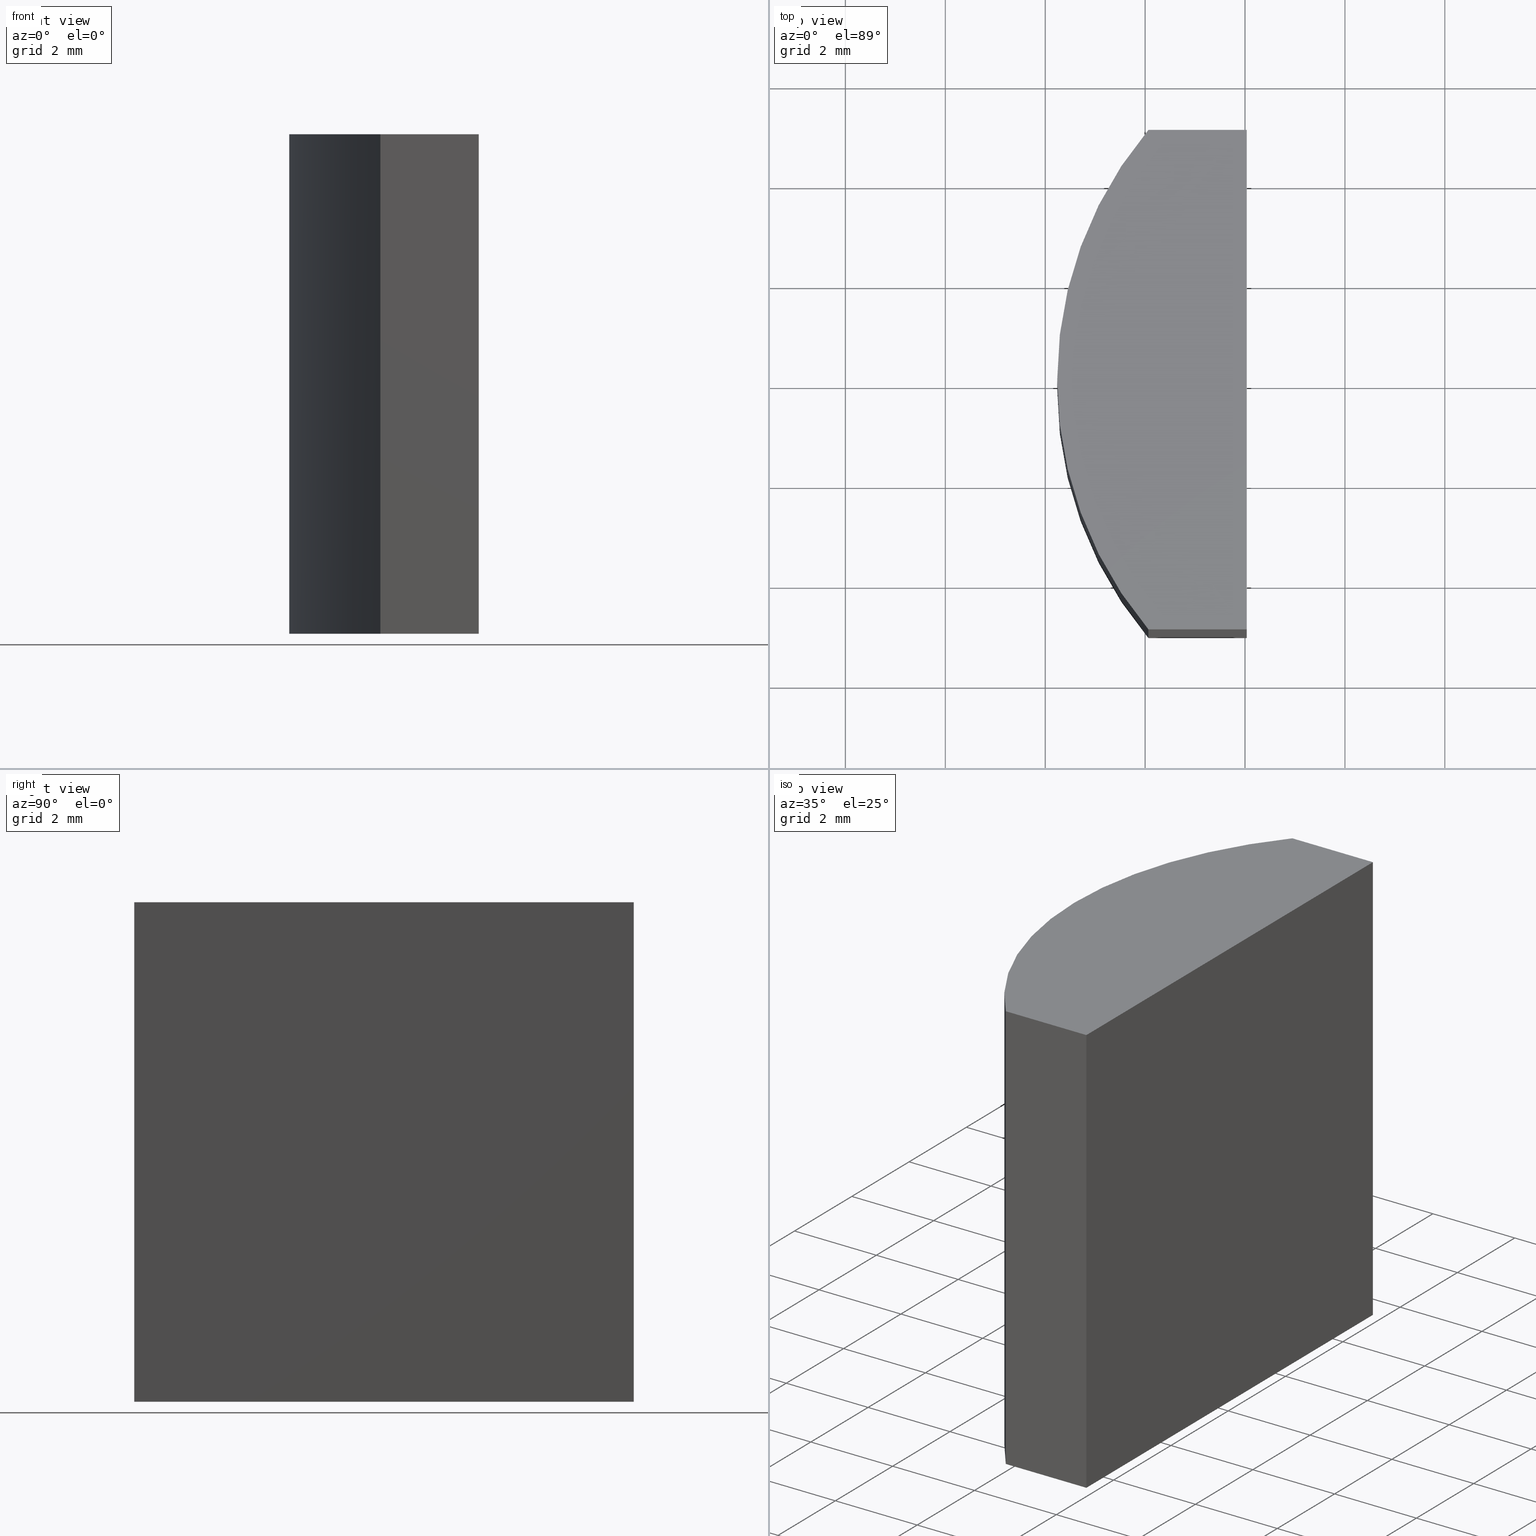
[diagram: canonical four-view strip — front | top / right | iso, engineering-drawing reading convention]
A machine part, canonical four-view strip (front | top / right | iso — engineering-drawing reading convention). The complete STEP part file that produces these views, byte-faithful:
ISO-10303-21;
HEADER;
FILE_DESCRIPTION (( 'STEP AP203' ),
    '1' );
FILE_NAME ('155518.STEP',
    '2024-05-13T02:35:44',
    ( '' ),
    ( '' ),
    'SwSTEP 2.0',
    'SolidWorks 2020',
    '' );
FILE_SCHEMA (( 'CONFIG_CONTROL_DESIGN' ));
ENDSEC;

DATA;
#1 = FACE_OUTER_BOUND ( 'NONE', #199, .T. ) ;
#2 = CARTESIAN_POINT ( 'NONE',  ( -3.964441844015321958, -5.000000000000000000, 10.00000000000000000 ) ) ;
#3 = FACE_OUTER_BOUND ( 'NONE', #133, .T. ) ;
#4 = CARTESIAN_POINT ( 'NONE',  ( 0.000000000000000000, 0.000000000000000000, 0.000000000000000000 ) ) ;
#5 = VECTOR ( 'NONE', #259, 1000.000000000000000 ) ;
#6 = DIRECTION ( 'NONE',  ( 0.000000000000000000, 0.000000000000000000, 1.000000000000000000 ) ) ;
#7 = CARTESIAN_POINT ( 'NONE',  ( 0.000000000000000000, 0.000000000000000000, 10.00000000000000000 ) ) ;
#8 = CIRCLE ( 'NONE', #103, 7.759999999999998899 ) ;
#9 = CARTESIAN_POINT ( 'NONE',  ( -7.759999999999998899, 0.000000000000000000, 10.00000000000000000 ) ) ;
#10 = AXIS2_PLACEMENT_3D ( 'NONE', #21, #230, #60 ) ;
#11 = VECTOR ( 'NONE', #207, 1000.000000000000000 ) ;
#12 = VERTEX_POINT ( 'NONE', #29 ) ;
#13 = ADVANCED_FACE ( 'NONE', ( #252 ), #53, .F. ) ;
#14 = VERTEX_POINT ( 'NONE', #247 ) ;
#15 = ORIENTED_EDGE ( 'NONE', *, *, #194, .F. ) ;
#16 = EDGE_LOOP ( 'NONE', ( #113, #91, #181, #96 ) ) ;
#17 = DIRECTION ( 'NONE',  ( 0.000000000000000000, 0.000000000000000000, 1.000000000000000000 ) ) ;
#18 = DIRECTION ( 'NONE',  ( -0.000000000000000000, -0.000000000000000000, -1.000000000000000000 ) ) ;
#19 = LINE ( 'NONE', #142, #189 ) ;
#20 = CARTESIAN_POINT ( 'NONE',  ( -5.934441844015322154, 5.000000000000000000, 0.000000000000000000 ) ) ;
#21 = CARTESIAN_POINT ( 'NONE',  ( 0.000000000000000000, 0.000000000000000000, 10.00000000000000000 ) ) ;
#22 = DIRECTION ( 'NONE',  ( 0.000000000000000000, 1.000000000000000000, 0.000000000000000000 ) ) ;
#23 = AXIS2_PLACEMENT_3D ( 'NONE', #128, #22, #101 ) ;
#24 = APPROVAL ( #86, 'δָ��' ) ;
#25 = EDGE_CURVE ( 'NONE', #12, #182, #224, .T. ) ;
#26 = LOCAL_TIME ( 10, 35, 44.00000000000000000, #272 ) ;
#27 = COORDINATED_UNIVERSAL_TIME_OFFSET ( 8, 0, .AHEAD. ) ;
#28 = ORIENTED_EDGE ( 'NONE', *, *, #248, .F. ) ;
#29 = CARTESIAN_POINT ( 'NONE',  ( -3.964441844015321958, 5.000000000000000000, 0.000000000000000000 ) ) ;
#30 = PERSON_AND_ORGANIZATION_ROLE ( 'design_supplier' ) ;
#31 = ORIENTED_EDGE ( 'NONE', *, *, #196, .T. ) ;
#32 = EDGE_LOOP ( 'NONE', ( #202, #268, #109, #116, #273 ) ) ;
#33 = EDGE_CURVE ( 'NONE', #249, #243, #187, .T. ) ;
#34 = DIRECTION ( 'NONE',  ( -1.000000000000000000, 0.000000000000000000, 0.000000000000000000 ) ) ;
#35 = VECTOR ( 'NONE', #40, 1000.000000000000000 ) ;
#36 = DIRECTION ( 'NONE',  ( 1.000000000000000000, 0.000000000000000000, 0.000000000000000000 ) ) ;
#37 = CARTESIAN_POINT ( 'NONE',  ( -3.964441844015321958, 5.000000000000000000, 10.00000000000000000 ) ) ;
#38 = CARTESIAN_POINT ( 'NONE',  ( -5.934441844015322154, -5.000000000000000000, 10.00000000000000000 ) ) ;
#39 = CC_DESIGN_PERSON_AND_ORGANIZATION_ASSIGNMENT ( #180, #152, ( #264 ) ) ;
#40 = DIRECTION ( 'NONE',  ( -0.000000000000000000, -0.000000000000000000, -1.000000000000000000 ) ) ;
#41 = CARTESIAN_POINT ( 'NONE',  ( 0.000000000000000000, 0.000000000000000000, 10.00000000000000000 ) ) ;
#42 = CARTESIAN_POINT ( 'NONE',  ( -3.964441844015321958, 5.000000000000000000, 10.00000000000000000 ) ) ;
#43 = APPROVAL ( #153, 'δָ��' ) ;
#44 = PERSON_AND_ORGANIZATION ( #97, #80 ) ;
#45 = SECURITY_CLASSIFICATION_LEVEL ( 'unclassified' ) ;
#46 = PERSON_AND_ORGANIZATION ( #97, #80 ) ;
#47 = EDGE_LOOP ( 'NONE', ( #28, #65, #71, #135, #219 ) ) ;
#48 = CC_DESIGN_DATE_AND_TIME_ASSIGNMENT ( #94, #270, ( #198 ) ) ;
#49 = ORIENTED_EDGE ( 'NONE', *, *, #265, .F. ) ;
#50 = VECTOR ( 'NONE', #231, 1000.000000000000000 ) ;
#51 = ORIENTED_EDGE ( 'NONE', *, *, #196, .F. ) ;
#52 = CIRCLE ( 'NONE', #222, 7.759999999999998899 ) ;
#53 = PLANE ( 'NONE',  #148 ) ;
#54 = AXIS2_PLACEMENT_3D ( 'NONE', #7, #233, #235 ) ;
#55 = DIRECTION ( 'NONE',  ( -0.000000000000000000, -0.000000000000000000, -1.000000000000000000 ) ) ;
#56 = CARTESIAN_POINT ( 'NONE',  ( 0.000000000000000000, 0.000000000000000000, 10.00000000000000000 ) ) ;
#57 = DIRECTION ( 'NONE',  ( -0.000000000000000000, 1.000000000000000000, -0.000000000000000000 ) ) ;
#58 = EDGE_CURVE ( 'NONE', #157, #271, #8, .T. ) ;
#59 = DIRECTION ( 'NONE',  ( 0.000000000000000000, 0.000000000000000000, 1.000000000000000000 ) ) ;
#60 = DIRECTION ( 'NONE',  ( -1.000000000000000000, 0.000000000000000000, 0.000000000000000000 ) ) ;
#61 = CARTESIAN_POINT ( 'NONE',  ( -5.934441844015322154, -5.000000000000000000, 10.00000000000000000 ) ) ;
#62 = DIRECTION ( 'NONE',  ( 1.000000000000000000, 0.000000000000000000, -0.000000000000000000 ) ) ;
#63 = AXIS2_PLACEMENT_3D ( 'NONE', #37, #190, #17 ) ;
#64 = DATE_AND_TIME ( #132, #70 ) ;
#65 = ORIENTED_EDGE ( 'NONE', *, *, #25, .F. ) ;
#66 = PERSON_AND_ORGANIZATION_ROLE ( 'classification_officer' ) ;
#67 = CARTESIAN_POINT ( 'NONE',  ( -5.934441844015322154, 5.000000000000000000, 10.00000000000000000 ) ) ;
#68 = PRODUCT_DEFINITION_SHAPE ( 'NONE', 'NONE',  #138 ) ;
#69 = ORIENTED_EDGE ( 'NONE', *, *, #74, .F. ) ;
#70 = LOCAL_TIME ( 10, 35, 44.00000000000000000, #90 ) ;
#71 = ORIENTED_EDGE ( 'NONE', *, *, #191, .F. ) ;
#72 = DIRECTION ( 'NONE',  ( -0.000000000000000000, -0.000000000000000000, -1.000000000000000000 ) ) ;
#73 = CARTESIAN_POINT ( 'NONE',  ( -3.964441844015321958, 5.000000000000000000, 10.00000000000000000 ) ) ;
#74 = EDGE_CURVE ( 'NONE', #243, #12, #19, .T. ) ;
#75 = CYLINDRICAL_SURFACE ( 'NONE', #10, 7.759999999999998899 ) ;
#76 = PLANE ( 'NONE',  #260 ) ;
#77 = DIRECTION ( 'NONE',  ( 0.000000000000000000, 0.000000000000000000, 1.000000000000000000 ) ) ;
#78 = CARTESIAN_POINT ( 'NONE',  ( -3.964441844015321958, -5.000000000000000000, 10.00000000000000000 ) ) ;
#79 = CARTESIAN_POINT ( 'NONE',  ( 0.000000000000000000, 0.000000000000000000, 0.000000000000000000 ) ) ;
#80 = ORGANIZATION ( 'δָ��', 'δָ��', '' ) ;
#81 =( LENGTH_UNIT ( ) NAMED_UNIT ( * ) SI_UNIT ( .MILLI., .METRE. ) );
#82 = CC_DESIGN_APPROVAL ( #24, ( #138 ) ) ;
#83 = AXIS2_PLACEMENT_3D ( 'NONE', #127, #77, #165 ) ;
#84 = EDGE_CURVE ( 'NONE', #271, #249, #163, .T. ) ;
#85 = PRODUCT ( '155518', '155518', '', ( #228 ) ) ;
#86 = APPROVAL_STATUS ( 'not_yet_approved' ) ;
#87 = VECTOR ( 'NONE', #18, 1000.000000000000000 ) ;
#88 = APPROVAL ( #184, 'δָ��' ) ;
#89 = ORIENTED_EDGE ( 'NONE', *, *, #239, .T. ) ;
#90 = COORDINATED_UNIVERSAL_TIME_OFFSET ( 8, 0, .AHEAD. ) ;
#91 = ORIENTED_EDGE ( 'NONE', *, *, #129, .F. ) ;
#92 = EDGE_CURVE ( 'NONE', #243, #179, #226, .T. ) ;
#93 = CIRCLE ( 'NONE', #54, 7.759999999999998899 ) ;
#94 = DATE_AND_TIME ( #242, #118 ) ;
#95 = ORIENTED_EDGE ( 'NONE', *, *, #191, .T. ) ;
#96 = ORIENTED_EDGE ( 'NONE', *, *, #265, .T. ) ;
#97 = PERSON ( 'δָ��', 'δָ��', 'δָ��', ('δָ��'), ('δָ��'), ('δָ��') ) ;
#98 = CYLINDRICAL_SURFACE ( 'NONE', #170, 7.759999999999998899 ) ;
#99 = FACE_OUTER_BOUND ( 'NONE', #32, .T. ) ;
#100 = CARTESIAN_POINT ( 'NONE',  ( 0.000000000000000000, 0.000000000000000000, 10.00000000000000000 ) ) ;
#101 = DIRECTION ( 'NONE',  ( 0.000000000000000000, -0.000000000000000000, 1.000000000000000000 ) ) ;
#102 = PRODUCT_RELATED_PRODUCT_CATEGORY ( 'detail', '', ( #85 ) ) ;
#103 = AXIS2_PLACEMENT_3D ( 'NONE', #56, #59, #140 ) ;
#104 = LINE ( 'NONE', #123, #195 ) ;
#105 = CC_DESIGN_PERSON_AND_ORGANIZATION_ASSIGNMENT ( #134, #30, ( #264 ) ) ;
#106 = APPROVAL_DATE_TIME ( #143, #24 ) ;
#107 = CC_DESIGN_APPROVAL ( #88, ( #264 ) ) ;
#108 = ADVANCED_FACE ( 'NONE', ( #1 ), #253, .F. ) ;
#109 = ORIENTED_EDGE ( 'NONE', *, *, #84, .T. ) ;
#110 = COORDINATED_UNIVERSAL_TIME_OFFSET ( 8, 0, .AHEAD. ) ;
#111 = ORIENTED_EDGE ( 'NONE', *, *, #254, .F. ) ;
#112 = CALENDAR_DATE ( 2024, 13, 5 ) ;
#113 = ORIENTED_EDGE ( 'NONE', *, *, #266, .T. ) ;
#114 = CALENDAR_DATE ( 2024, 13, 5 ) ;
#115 = APPROVAL_DATE_TIME ( #201, #43 ) ;
#116 = ORIENTED_EDGE ( 'NONE', *, *, #33, .T. ) ;
#117 = CARTESIAN_POINT ( 'NONE',  ( -5.934441844015322154, 5.000000000000000000, 0.000000000000000000 ) ) ;
#118 = LOCAL_TIME ( 10, 35, 44.00000000000000000, #110 ) ;
#119 = DIRECTION ( 'NONE',  ( -0.000000000000000000, 1.000000000000000000, -0.000000000000000000 ) ) ;
#120 = CARTESIAN_POINT ( 'NONE',  ( -7.759999999999998899, 0.000000000000000000, 0.000000000000000000 ) ) ;
#121 = PERSON_AND_ORGANIZATION ( #97, #80 ) ;
#122 = FACE_OUTER_BOUND ( 'NONE', #183, .T. ) ;
#123 = CARTESIAN_POINT ( 'NONE',  ( -5.934441844015322154, -5.000000000000000000, 0.000000000000000000 ) ) ;
#124 = ADVANCED_FACE ( 'NONE', ( #122 ), #98, .T. ) ;
#125 = LINE ( 'NONE', #141, #87 ) ;
#126 = CIRCLE ( 'NONE', #251, 7.759999999999998899 ) ;
#127 = CARTESIAN_POINT ( 'NONE',  ( 0.000000000000000000, 0.000000000000000000, 0.000000000000000000 ) ) ;
#128 = CARTESIAN_POINT ( 'NONE',  ( -5.934441844015322154, -5.000000000000000000, 10.00000000000000000 ) ) ;
#129 = EDGE_CURVE ( 'NONE', #249, #221, #209, .T. ) ;
#130 = ADVANCED_FACE ( 'NONE', ( #255 ), #76, .F. ) ;
#131 = LOCAL_TIME ( 10, 35, 44.00000000000000000, #167 ) ;
#132 = CALENDAR_DATE ( 2024, 13, 5 ) ;
#133 = EDGE_LOOP ( 'NONE', ( #220, #31, #89, #49 ) ) ;
#134 = PERSON_AND_ORGANIZATION ( #97, #80 ) ;
#135 = ORIENTED_EDGE ( 'NONE', *, *, #266, .F. ) ;
#136 = ORIENTED_EDGE ( 'NONE', *, *, #254, .T. ) ;
#137 = CARTESIAN_POINT ( 'NONE',  ( -5.934441844015322154, 5.000000000000000000, 10.00000000000000000 ) ) ;
#138 = PRODUCT_DEFINITION ( 'δ֪', '', #264, #158 ) ;
#139 =( NAMED_UNIT ( * ) PLANE_ANGLE_UNIT ( ) SI_UNIT ( $, .RADIAN. ) );
#140 = DIRECTION ( 'NONE',  ( 1.000000000000000000, 0.000000000000000000, 0.000000000000000000 ) ) ;
#141 = CARTESIAN_POINT ( 'NONE',  ( -7.759999999999998899, 0.000000000000000000, 10.00000000000000000 ) ) ;
#142 = CARTESIAN_POINT ( 'NONE',  ( -3.964441844015321958, 5.000000000000000000, 10.00000000000000000 ) ) ;
#143 = DATE_AND_TIME ( #258, #131 ) ;
#144 = LINE ( 'NONE', #262, #176 ) ;
#145 = MANIFOLD_SOLID_BREP ( '͹̨-����1', #236 ) ;
#146 = DIRECTION ( 'NONE',  ( 1.000000000000000000, 0.000000000000000000, 0.000000000000000000 ) ) ;
#147 = DATE_TIME_ROLE ( 'creation_date' ) ;
#148 = AXIS2_PLACEMENT_3D ( 'NONE', #67, #223, #156 ) ;
#149 = CC_DESIGN_SECURITY_CLASSIFICATION ( #198, ( #264 ) ) ;
#150 = CC_DESIGN_PERSON_AND_ORGANIZATION_ASSIGNMENT ( #244, #66, ( #198 ) ) ;
#151 = PERSON_AND_ORGANIZATION_ROLE ( 'design_owner' ) ;
#152 = PERSON_AND_ORGANIZATION_ROLE ( 'creator' ) ;
#153 = APPROVAL_STATUS ( 'not_yet_approved' ) ;
#154 = ORIENTED_EDGE ( 'NONE', *, *, #92, .F. ) ;
#155 = APPLICATION_CONTEXT ( 'configuration controlled 3d designs of mechanical parts and assemblies' ) ;
#156 = DIRECTION ( 'NONE',  ( 0.000000000000000000, -0.000000000000000000, -1.000000000000000000 ) ) ;
#157 = VERTEX_POINT ( 'NONE', #9 ) ;
#158 = DESIGN_CONTEXT ( 'detailed design', #155, 'design' ) ;
#159 = APPROVAL_PERSON_ORGANIZATION ( #44, #24, #175 ) ;
#160 = ORIENTED_EDGE ( 'NONE', *, *, #25, .T. ) ;
#161 = CC_DESIGN_PERSON_AND_ORGANIZATION_ASSIGNMENT ( #173, #263, ( #138 ) ) ;
#162 = CARTESIAN_POINT ( 'NONE',  ( -5.934441844015322154, -5.000000000000000000, 10.00000000000000000 ) ) ;
#163 = LINE ( 'NONE', #162, #50 ) ;
#164 = LINE ( 'NONE', #38, #35 ) ;
#165 = DIRECTION ( 'NONE',  ( 1.000000000000000000, 0.000000000000000000, 0.000000000000000000 ) ) ;
#166 = DIRECTION ( 'NONE',  ( 0.000000000000000000, 0.000000000000000000, 1.000000000000000000 ) ) ;
#167 = COORDINATED_UNIVERSAL_TIME_OFFSET ( 8, 0, .AHEAD. ) ;
#168 = APPLICATION_PROTOCOL_DEFINITION ( 'international standard', 'config_control_design', 1994, #232 ) ;
#169 = CARTESIAN_POINT ( 'NONE',  ( -5.934441844015322154, 5.000000000000000000, 10.00000000000000000 ) ) ;
#170 = AXIS2_PLACEMENT_3D ( 'NONE', #100, #55, #34 ) ;
#171 = PLANE ( 'NONE',  #23 ) ;
#172 = CARTESIAN_POINT ( 'NONE',  ( -3.964441844015321958, -5.000000000000000000, 0.000000000000000000 ) ) ;
#173 = PERSON_AND_ORGANIZATION ( #97, #80 ) ;
#174 = APPROVAL_PERSON_ORGANIZATION ( #250, #88, #178 ) ;
#175 = APPROVAL_ROLE ( '' ) ;
#176 = VECTOR ( 'NONE', #57, 1000.000000000000000 ) ;
#177 = ADVANCED_FACE ( 'NONE', ( #208 ), #171, .F. ) ;
#178 = APPROVAL_ROLE ( '' ) ;
#179 = VERTEX_POINT ( 'NONE', #227 ) ;
#180 = PERSON_AND_ORGANIZATION ( #97, #80 ) ;
#181 = ORIENTED_EDGE ( 'NONE', *, *, #84, .F. ) ;
#182 = VERTEX_POINT ( 'NONE', #20 ) ;
#183 = EDGE_LOOP ( 'NONE', ( #51, #15, #136, #200 ) ) ;
#184 = APPROVAL_STATUS ( 'not_yet_approved' ) ;
#185 = CC_DESIGN_APPROVAL ( #43, ( #198 ) ) ;
#186 = DIRECTION ( 'NONE',  ( -1.000000000000000000, -0.000000000000000000, -0.000000000000000000 ) ) ;
#187 = LINE ( 'NONE', #73, #225 ) ;
#188 = CARTESIAN_POINT ( 'NONE',  ( 0.000000000000000000, 0.000000000000000000, 0.000000000000000000 ) ) ;
#189 = VECTOR ( 'NONE', #72, 1000.000000000000000 ) ;
#190 = DIRECTION ( 'NONE',  ( -1.000000000000000000, 0.000000000000000000, 0.000000000000000000 ) ) ;
#191 = EDGE_CURVE ( 'NONE', #221, #12, #144, .T. ) ;
#192 =( NAMED_UNIT ( * ) SI_UNIT ( $, .STERADIAN. ) SOLID_ANGLE_UNIT ( ) );
#193 = PLANE ( 'NONE',  #211 ) ;
#194 = EDGE_CURVE ( 'NONE', #179, #157, #93, .T. ) ;
#195 = VECTOR ( 'NONE', #210, 1000.000000000000000 ) ;
#196 = EDGE_CURVE ( 'NONE', #157, #203, #125, .T. ) ;
#197 = APPLICATION_PROTOCOL_DEFINITION ( 'international standard', 'config_control_design', 1994, #155 ) ;
#198 = SECURITY_CLASSIFICATION ( '', '', #45 ) ;
#199 = EDGE_LOOP ( 'NONE', ( #95, #69, #274, #205 ) ) ;
#200 = ORIENTED_EDGE ( 'NONE', *, *, #248, .T. ) ;
#201 = DATE_AND_TIME ( #112, #206 ) ;
#202 = ORIENTED_EDGE ( 'NONE', *, *, #194, .T. ) ;
#203 = VERTEX_POINT ( 'NONE', #120 ) ;
#204 = CC_DESIGN_DATE_AND_TIME_ASSIGNMENT ( #237, #147, ( #138 ) ) ;
#205 = ORIENTED_EDGE ( 'NONE', *, *, #129, .T. ) ;
#206 = LOCAL_TIME ( 10, 35, 44.00000000000000000, #27 ) ;
#207 = DIRECTION ( 'NONE',  ( -1.000000000000000000, -0.000000000000000000, -0.000000000000000000 ) ) ;
#208 = FACE_OUTER_BOUND ( 'NONE', #16, .T. ) ;
#209 = LINE ( 'NONE', #2, #246 ) ;
#210 = DIRECTION ( 'NONE',  ( 1.000000000000000000, 0.000000000000000000, 0.000000000000000000 ) ) ;
#211 = AXIS2_PLACEMENT_3D ( 'NONE', #41, #256, #62 ) ;
#212 =( GEOMETRIC_REPRESENTATION_CONTEXT ( 3 ) GLOBAL_UNCERTAINTY_ASSIGNED_CONTEXT ( ( #217 ) ) GLOBAL_UNIT_ASSIGNED_CONTEXT ( ( #81, #139, #192 ) ) REPRESENTATION_CONTEXT ( 'NONE', 'WORKASPACE' ) );
#213 = DIRECTION ( 'NONE',  ( 0.000000000000000000, 0.000000000000000000, 1.000000000000000000 ) ) ;
#214 = LINE ( 'NONE', #169, #5 ) ;
#215 = CC_DESIGN_PERSON_AND_ORGANIZATION_ASSIGNMENT ( #121, #151, ( #85 ) ) ;
#216 = VECTOR ( 'NONE', #186, 1000.000000000000000 ) ;
#217 = UNCERTAINTY_MEASURE_WITH_UNIT (LENGTH_MEASURE( 1.000000000000000082E-05 ), #81, 'distance_accuracy_value', 'NONE');
#218 = APPROVAL_ROLE ( '' ) ;
#219 = ORIENTED_EDGE ( 'NONE', *, *, #239, .F. ) ;
#220 = ORIENTED_EDGE ( 'NONE', *, *, #58, .F. ) ;
#221 = VERTEX_POINT ( 'NONE', #172 ) ;
#222 = AXIS2_PLACEMENT_3D ( 'NONE', #79, #213, #36 ) ;
#223 = DIRECTION ( 'NONE',  ( 0.000000000000000000, -1.000000000000000000, 0.000000000000000000 ) ) ;
#224 = LINE ( 'NONE', #117, #11 ) ;
#225 = VECTOR ( 'NONE', #119, 1000.000000000000000 ) ;
#226 = LINE ( 'NONE', #137, #216 ) ;
#227 = CARTESIAN_POINT ( 'NONE',  ( -5.934441844015322154, 5.000000000000000000, 10.00000000000000000 ) ) ;
#228 = MECHANICAL_CONTEXT ( 'NONE', #232, 'mechanical' ) ;
#229 = DIRECTION ( 'NONE',  ( -0.000000000000000000, -0.000000000000000000, -1.000000000000000000 ) ) ;
#230 = DIRECTION ( 'NONE',  ( -0.000000000000000000, -0.000000000000000000, -1.000000000000000000 ) ) ;
#231 = DIRECTION ( 'NONE',  ( 1.000000000000000000, 0.000000000000000000, 0.000000000000000000 ) ) ;
#232 = APPLICATION_CONTEXT ( 'configuration controlled 3d designs of mechanical parts and assemblies' ) ;
#233 = DIRECTION ( 'NONE',  ( 0.000000000000000000, 0.000000000000000000, 1.000000000000000000 ) ) ;
#234 = ADVANCED_FACE ( 'NONE', ( #99 ), #193, .T. ) ;
#235 = DIRECTION ( 'NONE',  ( 1.000000000000000000, 0.000000000000000000, 0.000000000000000000 ) ) ;
#236 = CLOSED_SHELL ( 'NONE', ( #261, #124, #177, #108, #13, #234, #130 ) ) ;
#237 = DATE_AND_TIME ( #114, #26 ) ;
#238 = ADVANCED_BREP_SHAPE_REPRESENTATION ( '155518', ( #145, #83 ), #212 ) ;
#239 = EDGE_CURVE ( 'NONE', #203, #14, #52, .T. ) ;
#240 = APPROVAL_PERSON_ORGANIZATION ( #46, #43, #218 ) ;
#241 = SHAPE_DEFINITION_REPRESENTATION ( #68, #238 ) ;
#242 = CALENDAR_DATE ( 2024, 13, 5 ) ;
#243 = VERTEX_POINT ( 'NONE', #42 ) ;
#244 = PERSON_AND_ORGANIZATION ( #97, #80 ) ;
#245 = EDGE_LOOP ( 'NONE', ( #160, #111, #154, #269 ) ) ;
#246 = VECTOR ( 'NONE', #229, 1000.000000000000000 ) ;
#247 = CARTESIAN_POINT ( 'NONE',  ( -5.934441844015322154, -5.000000000000000000, 0.000000000000000000 ) ) ;
#248 = EDGE_CURVE ( 'NONE', #182, #203, #126, .T. ) ;
#249 = VERTEX_POINT ( 'NONE', #78 ) ;
#250 = PERSON_AND_ORGANIZATION ( #97, #80 ) ;
#251 = AXIS2_PLACEMENT_3D ( 'NONE', #188, #6, #146 ) ;
#252 = FACE_OUTER_BOUND ( 'NONE', #245, .T. ) ;
#253 = PLANE ( 'NONE',  #63 ) ;
#254 = EDGE_CURVE ( 'NONE', #179, #182, #214, .T. ) ;
#255 = FACE_OUTER_BOUND ( 'NONE', #47, .T. ) ;
#256 = DIRECTION ( 'NONE',  ( 0.000000000000000000, 0.000000000000000000, 1.000000000000000000 ) ) ;
#257 = DIRECTION ( 'NONE',  ( 1.000000000000000000, 0.000000000000000000, -0.000000000000000000 ) ) ;
#258 = CALENDAR_DATE ( 2024, 13, 5 ) ;
#259 = DIRECTION ( 'NONE',  ( -0.000000000000000000, -0.000000000000000000, -1.000000000000000000 ) ) ;
#260 = AXIS2_PLACEMENT_3D ( 'NONE', #4, #166, #257 ) ;
#261 = ADVANCED_FACE ( 'NONE', ( #3 ), #75, .T. ) ;
#262 = CARTESIAN_POINT ( 'NONE',  ( -3.964441844015321958, 5.000000000000000000, 0.000000000000000000 ) ) ;
#263 = PERSON_AND_ORGANIZATION_ROLE ( 'creator' ) ;
#264 = PRODUCT_DEFINITION_FORMATION_WITH_SPECIFIED_SOURCE ( '�κ�', '', #85, .NOT_KNOWN. ) ;
#265 = EDGE_CURVE ( 'NONE', #271, #14, #164, .T. ) ;
#266 = EDGE_CURVE ( 'NONE', #14, #221, #104, .T. ) ;
#267 = APPROVAL_DATE_TIME ( #64, #88 ) ;
#268 = ORIENTED_EDGE ( 'NONE', *, *, #58, .T. ) ;
#269 = ORIENTED_EDGE ( 'NONE', *, *, #74, .T. ) ;
#270 = DATE_TIME_ROLE ( 'classification_date' ) ;
#271 = VERTEX_POINT ( 'NONE', #61 ) ;
#272 = COORDINATED_UNIVERSAL_TIME_OFFSET ( 8, 0, .AHEAD. ) ;
#273 = ORIENTED_EDGE ( 'NONE', *, *, #92, .T. ) ;
#274 = ORIENTED_EDGE ( 'NONE', *, *, #33, .F. ) ;
ENDSEC;
END-ISO-10303-21;
